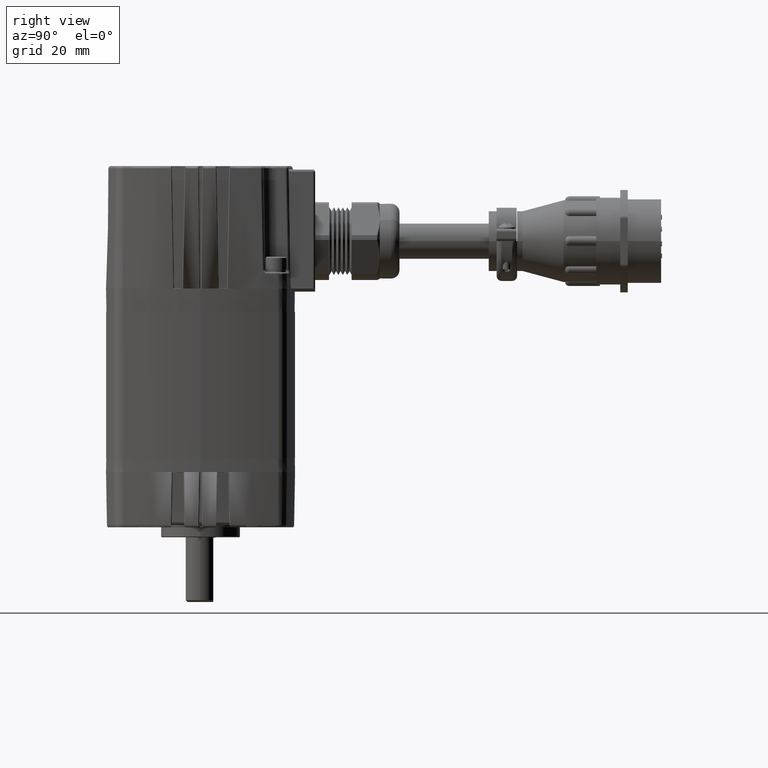
[diagram: clean part render]
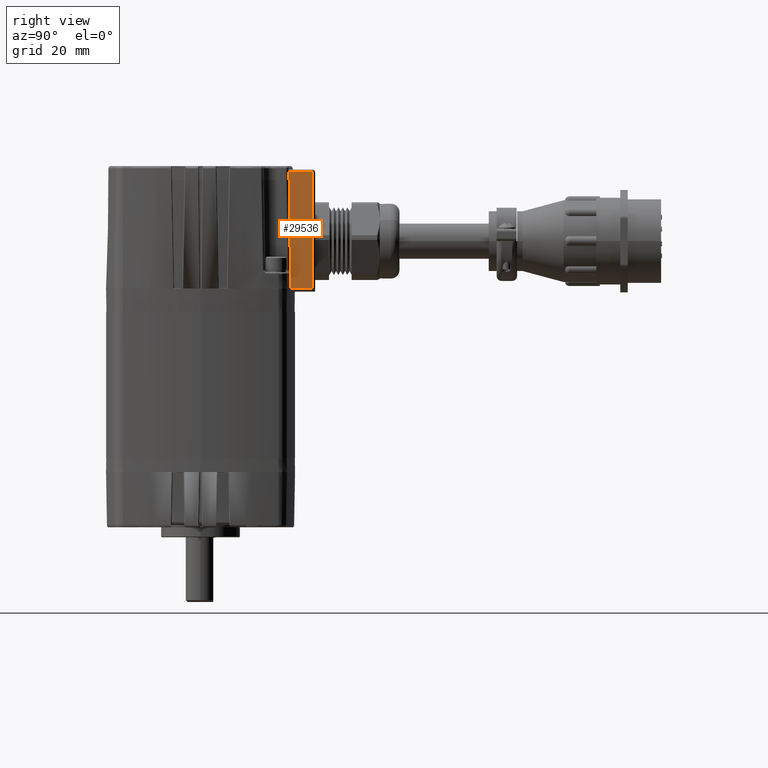
[diagram: same view with one face highlighted and labeled with its STEP entity id]
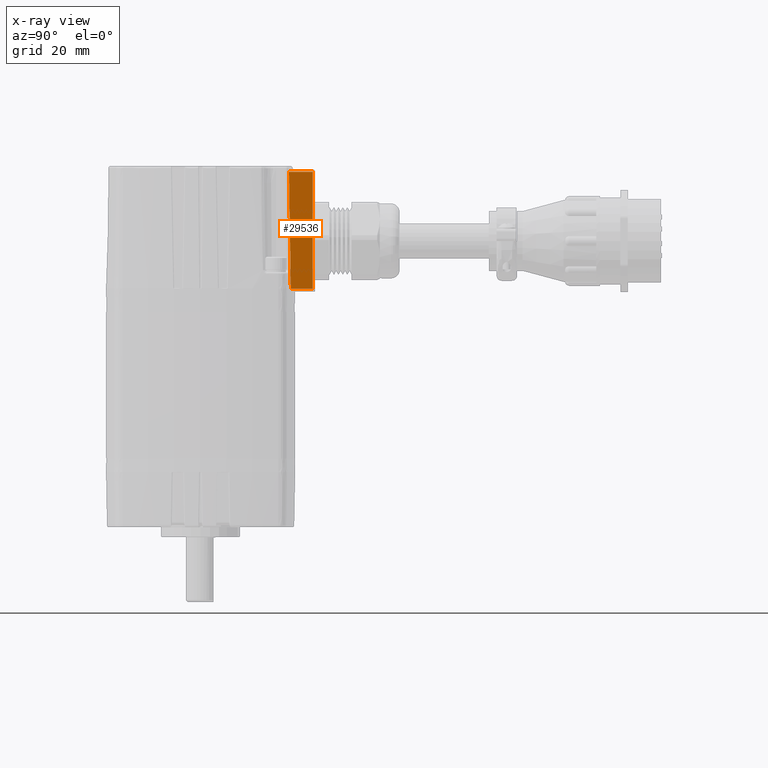
[diagram: x-ray of the same camera — body ghosted, the highlighted face saturated]
A machine part, right view. The second image highlights one B-rep face of the part: STEP entity #29536.
The next image is the same camera in x-ray: the body ghosted, the highlighted face saturated — about 0% of this face is hidden behind the body in this view.
In plain terms, the highlighted planar face has unit normal (0.9998, 0, 0.0175).
Its self-contained STEP definition (entity closure, byte-faithful):
#781 = VECTOR ( 'NONE', #1330, 39.37007874015748100 ) ;
#1330 = DIRECTION ( 'NONE',  ( 1.093569679255777100E-014, -1.000000000000000000, -0.0000000000000000000 ) ) ;
#1823 = CARTESIAN_POINT ( 'NONE',  ( -0.7504191908791157900, 1.111675948804842000, -1.785523572029822100 ) ) ;
#3449 = EDGE_CURVE ( 'NONE', #30913, #29615, #39093, .T. ) ;
#4266 = ORIENTED_EDGE ( 'NONE', *, *, #11710, .T. ) ;
#4788 = FACE_OUTER_BOUND ( 'NONE', #20694, .T. ) ;
#5534 = CARTESIAN_POINT ( 'NONE',  ( -0.7719467506968692400, 1.130025055000072600, -0.5522104979947082300 ) ) ;
#6986 = CARTESIAN_POINT ( 'NONE',  ( -0.7504191910000455000, 1.109886004000072400, -1.785523572000000200 ) ) ;
#7535 = CARTESIAN_POINT ( 'NONE',  ( -0.7719467512082933700, 1.130025055126026700, -0.5522104895113192400 ) ) ;
#8953 = LINE ( 'NONE', #30740, #16183 ) ;
#9801 = DIRECTION ( 'NONE',  ( -0.01744880294981525700, 0.02031992840238032400, 0.9996412555438779500 ) ) ;
#10583 = VERTEX_POINT ( 'NONE', #23921 ) ;
#11710 = EDGE_CURVE ( 'NONE', #29615, #12559, #25323, .T. ) ;
#12529 = LINE ( 'NONE', #28795, #19718 ) ;
#12559 = VERTEX_POINT ( 'NONE', #28638 ) ;
#13329 = DIRECTION ( 'NONE',  ( -0.01745240636697072500, 1.908542243296972600E-016, 0.9998476951576185100 ) ) ;
#14054 = LINE ( 'NONE', #18897, #21143 ) ;
#14926 = CARTESIAN_POINT ( 'NONE',  ( -0.7504191908791157900, 1.111675948804842000, -1.785523572029822100 ) ) ;
#16183 = VECTOR ( 'NONE', #33777, 39.37007874015748100 ) ;
#16188 = CARTESIAN_POINT ( 'NONE',  ( -0.7760000003270906000, 1.409999999987761000, -0.3199999999998108200 ) ) ;
#16416 = VERTEX_POINT ( 'NONE', #37182 ) ;
#16617 = CARTESIAN_POINT ( 'NONE',  ( -0.7760000003596387900, 1.280851937000067700, -0.3200000000000001200 ) ) ;
#16961 = B_SPLINE_CURVE_WITH_KNOTS ( 'NONE', 3,
 ( #14926, #17969, #39278, #21019 ),
 .UNSPECIFIED., .F., .F.,
 ( 4, 4 ),
 ( 0.0000000000000000000, 1.000000000000000000 ),
 .UNSPECIFIED. ) ;
#17217 = ORIENTED_EDGE ( 'NONE', *, *, #26660, .T. ) ;
#17969 = CARTESIAN_POINT ( 'NONE',  ( -0.7575692242603392400, 1.117777989648530300, -1.375898439208306500 ) ) ;
#18897 = CARTESIAN_POINT ( 'NONE',  ( -0.7719073255001921400, 1.129979137000072500, -0.5544691660087302000 ) ) ;
#19606 = EDGE_CURVE ( 'NONE', #10583, #27539, #12529, .T. ) ;
#19718 = VECTOR ( 'NONE', #28927, 39.37007874015748100 ) ;
#20048 = VECTOR ( 'NONE', #30507, 39.37007874015748900 ) ;
#20694 = EDGE_LOOP ( 'NONE', ( #39292, #36390, #30098, #32512, #17217, #33335, #4266 ) ) ;
#21019 = CARTESIAN_POINT ( 'NONE',  ( -0.7719073252153178000, 1.129979137102648200, -0.5544691649324173800 ) ) ;
#21143 = VECTOR ( 'NONE', #9801, 39.37007874015748900 ) ;
#22382 = PLANE ( 'NONE',  #23578 ) ;
#23444 = EDGE_CURVE ( 'NONE', #33608, #12559, #24196, .T. ) ;
#23578 = AXIS2_PLACEMENT_3D ( 'NONE', #6986, #31614, #13329 ) ;
#23921 = CARTESIAN_POINT ( 'NONE',  ( -0.7504191911055615400, 1.409999999987762200, -1.785523572197777400 ) ) ;
#24196 = LINE ( 'NONE', #16617, #781 ) ;
#24459 = CARTESIAN_POINT ( 'NONE',  ( -0.7719110883409371300, 1.129983519000072700, -0.5542535930059506700 ) ) ;
#25323 = LINE ( 'NONE', #5534, #34386 ) ;
#26456 = EDGE_CURVE ( 'NONE', #27539, #16416, #16961, .T. ) ;
#26660 = EDGE_CURVE ( 'NONE', #16416, #30913, #14054, .T. ) ;
#27539 = VERTEX_POINT ( 'NONE', #1823 ) ;
#28638 = CARTESIAN_POINT ( 'NONE',  ( -0.7759999998483048100, 1.133468908436170000, -0.3199999999984312600 ) ) ;
#28795 = CARTESIAN_POINT ( 'NONE',  ( -0.7504191910000421700, 1.259943002000067700, -1.785523572000000200 ) ) ;
#28927 = DIRECTION ( 'NONE',  ( 1.093569679255777100E-014, -1.000000000000000000, -0.0000000000000000000 ) ) ;
#29536 = ADVANCED_FACE ( 'NONE', ( #4788 ), #22382, .T. ) ;
#29615 = VERTEX_POINT ( 'NONE', #7535 ) ;
#30098 = ORIENTED_EDGE ( 'NONE', *, *, #19606, .T. ) ;
#30507 = DIRECTION ( 'NONE',  ( -0.01744880198610366700, 0.02032264611664165800, 0.9996412003134261800 ) ) ;
#30740 = CARTESIAN_POINT ( 'NONE',  ( -0.7632863381924643900, 1.409999999987761000, -1.048365215395228500 ) ) ;
#30913 = VERTEX_POINT ( 'NONE', #32130 ) ;
#31614 = DIRECTION ( 'NONE',  ( -0.9998476951576185100, 1.093403123298145100E-014, -0.01745240636697072500 ) ) ;
#32130 = CARTESIAN_POINT ( 'NONE',  ( -0.7719110881417038400, 1.129983519140781700, -0.5542535870708573700 ) ) ;
#32512 = ORIENTED_EDGE ( 'NONE', *, *, #26456, .T. ) ;
#32814 = DIRECTION ( 'NONE',  ( -0.01745048793233652800, 0.01482685046255641900, 0.9997377881106047600 ) ) ;
#33335 = ORIENTED_EDGE ( 'NONE', *, *, #3449, .T. ) ;
#33608 = VERTEX_POINT ( 'NONE', #16188 ) ;
#33777 = DIRECTION ( 'NONE',  ( 0.01745240643398193700, -3.761218744111505800E-016, -0.9998476951564488900 ) ) ;
#34386 = VECTOR ( 'NONE', #32814, 39.37007874015748100 ) ;
#36377 = EDGE_CURVE ( 'NONE', #33608, #10583, #8953, .T. ) ;
#36390 = ORIENTED_EDGE ( 'NONE', *, *, #36377, .T. ) ;
#37182 = CARTESIAN_POINT ( 'NONE',  ( -0.7719073252153178000, 1.129979137102648200, -0.5544691649324173800 ) ) ;
#39093 = LINE ( 'NONE', #24459, #20048 ) ;
#39278 = CARTESIAN_POINT ( 'NONE',  ( -0.7647319357662046800, 1.123879052315197100, -0.9655469702113178600 ) ) ;
#39292 = ORIENTED_EDGE ( 'NONE', *, *, #23444, .F. ) ;